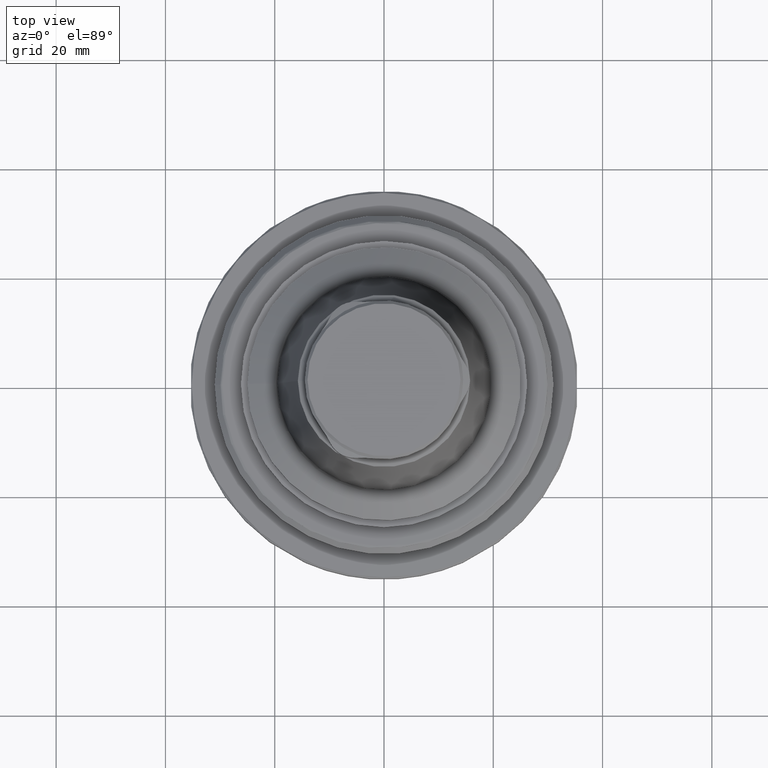
[diagram: clean part render]
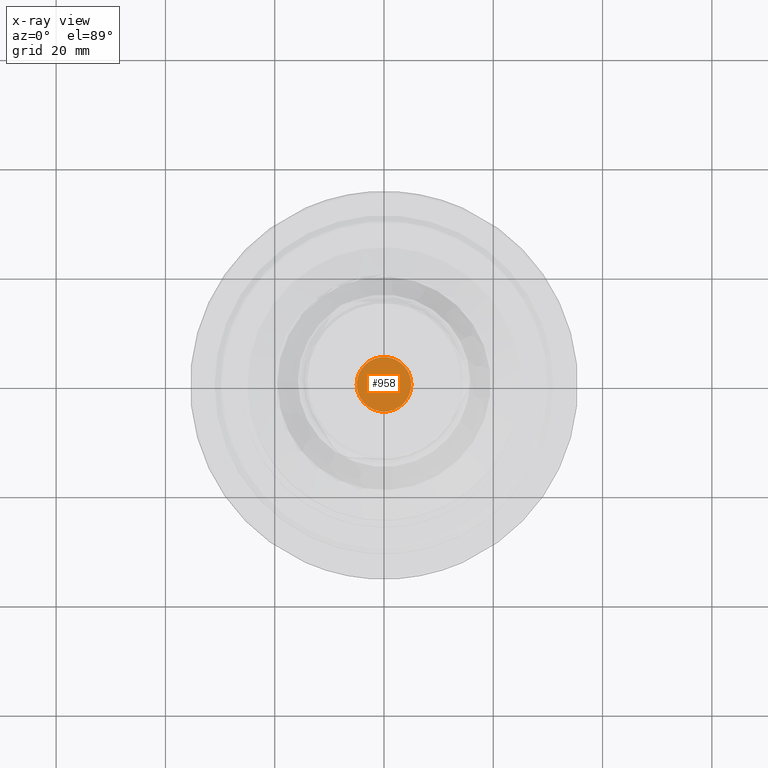
[diagram: x-ray — body ghosted, one internal face saturated and labeled with its STEP entity id]
A machine part, top view, then the same camera in x-ray: the body is ghosted and one INTERNAL B-rep face — a face not visible from any outside direction — is saturated and labeled: STEP entity #958.
In plain terms, the highlighted planar face has unit normal (0, 0, -1).
Its self-contained STEP definition (entity closure, byte-faithful):
#111=PLANE('',#1090);
#166=CIRCLE('',#1089,4.99999999999991);
#412=ORIENTED_EDGE('',*,*,#541,.F.);
#541=EDGE_CURVE('',#632,#632,#166,.T.);
#632=VERTEX_POINT('',#1813);
#766=EDGE_LOOP('',(#412));
#862=FACE_BOUND('',#766,.T.);
#958=ADVANCED_FACE('',(#862),#111,.T.);
#1089=AXIS2_PLACEMENT_3D('',#1812,#1353,#1354);
#1090=AXIS2_PLACEMENT_3D('',#1814,#1355,#1356);
#1353=DIRECTION('',(0.,0.,1.));
#1354=DIRECTION('',(1.,0.,0.));
#1355=DIRECTION('',(0.,0.,-1.));
#1356=DIRECTION('',(-1.,0.,0.));
#1812=CARTESIAN_POINT('',(0.,0.,6.00000000000001));
#1813=CARTESIAN_POINT('',(4.99999999999991,0.,6.00000000000001));
#1814=CARTESIAN_POINT('',(4.99999999999991,0.,6.00000000000001));